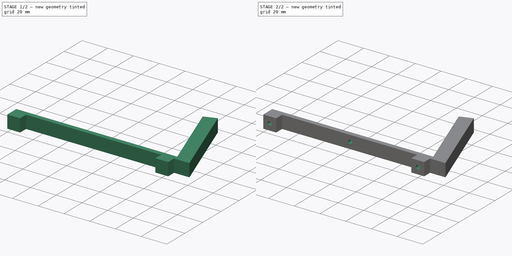
[diagram: build sequence overview — one tinted view per stage of 2, left to right]
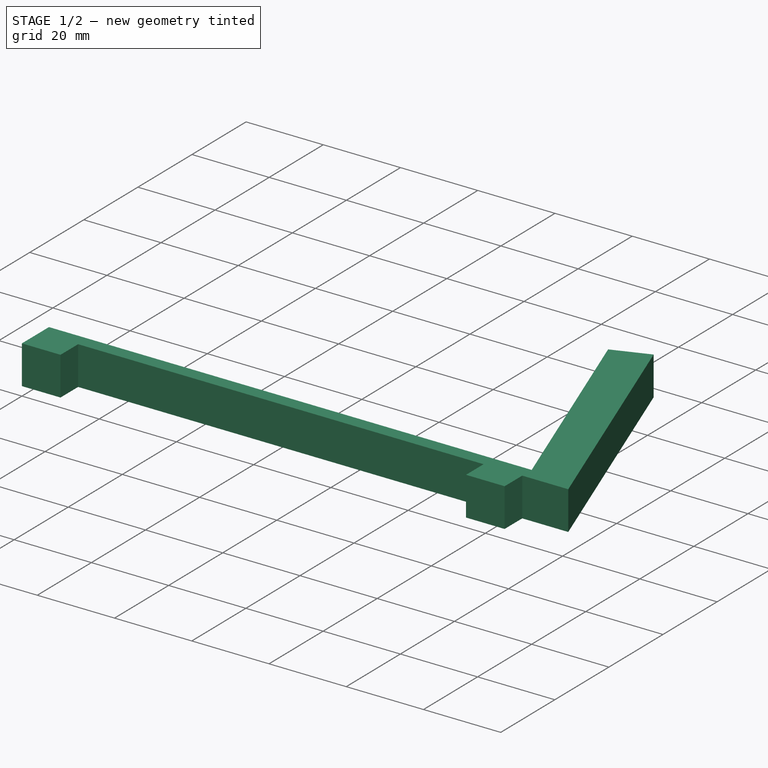
[diagram: stage 1 of 2 — iso view after this stage's code; geometry added in this stage tinted green]
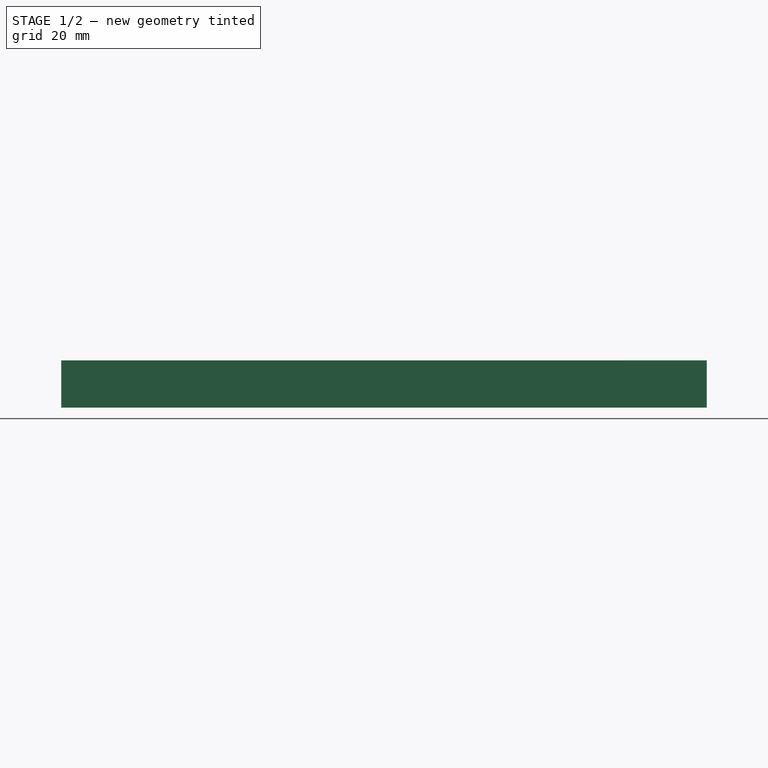
[diagram: stage 1 of 2 — front view after this stage's code; geometry added in this stage tinted green]
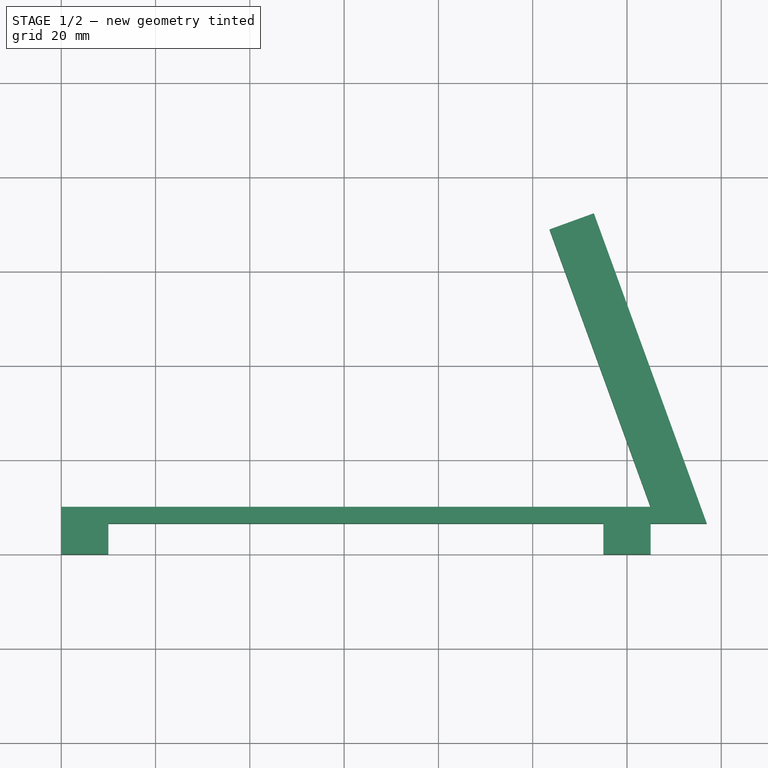
[diagram: stage 1 of 2 — top view after this stage's code; geometry added in this stage tinted green]
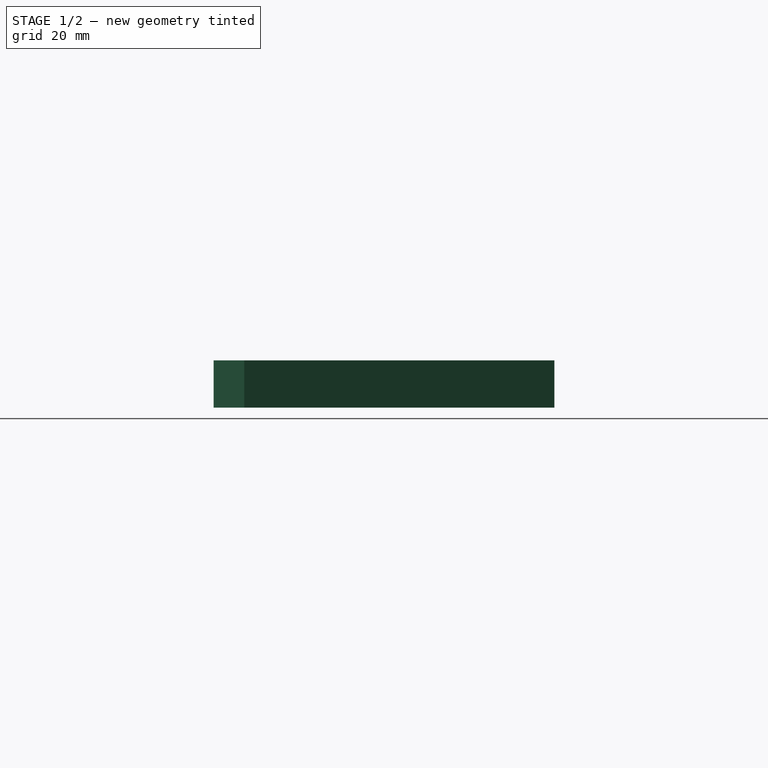
[diagram: stage 1 of 2 — right view after this stage's code; geometry added in this stage tinted green]
FCSTD DOCUMENT  (FreeCAD 0.20R)
Label: 7inch_screen_legs
License: All rights reserved
LicenseURL: http://en.wikipedia.org/wiki/All_rights_reserved
objects: Sketcher::SketchObject×2, PartDesign::Pad×1, PartDesign::Pocket×1, PartDesign::Body×1
note: 7 computed .brp shape members not serialized (recipe doc carries the construction recipe); baked Part::Feature solids carry a one-line shape summary decoded from their .brp

FEATURE [Sketcher::SketchObject] Sketch
  FullyConstrained = true
  MapMode = 5
  Support = -> [XY_Plane]
  sketch-geometry (21):
    g0: LineSegment StartX=0 StartY=0 StartZ=0 EndX=0 EndY=10 EndZ=0
    g1: LineSegment StartX=0 StartY=0 StartZ=0 EndX=10 EndY=0 EndZ=0
    g2: LineSegment StartX=10 StartY=0 StartZ=0 EndX=10 EndY=6.5 EndZ=0
    g3: LineSegment StartX=10 StartY=6.5 StartZ=0 EndX=115 EndY=6.5 EndZ=0
    g4: LineSegment StartX=115 StartY=6.5 StartZ=0 EndX=115 EndY=0 EndZ=0
    g5: LineSegment StartX=115 StartY=-4e-16 StartZ=0 EndX=125 EndY=-4e-16 EndZ=0
    g6: LineSegment StartX=125 StartY=-4e-16 StartZ=0 EndX=125 EndY=6.5 EndZ=0
    g7: LineSegment StartX=125 StartY=6.5 StartZ=0 EndX=136.916 EndY=6.5 EndZ=0
    g8: LineSegment StartX=136.916 StartY=6.5 StartZ=0 EndX=112.974 EndY=72.2785 EndZ=0
    g9: LineSegment StartX=112.974 StartY=72.2785 StartZ=0 EndX=103.577 EndY=68.8583 EndZ=0
    g10: LineSegment StartX=103.577 StartY=68.8583 StartZ=0 EndX=125 EndY=10 EndZ=0
    g11: LineSegment StartX=125 StartY=10 StartZ=0 EndX=0 EndY=10 EndZ=0
    g12: LineSegment StartX=125 StartY=10 StartZ=0 EndX=125 EndY=6.5 EndZ=0
    g13: LineSegment StartX=0 StartY=10 StartZ=0 EndX=110.378 EndY=50.1742 EndZ=0
    g14: LineSegment StartX=10 StartY=6.5 StartZ=0 EndX=5 EndY=3.25 EndZ=0
    g15: LineSegment StartX=5 StartY=3.25 StartZ=0 EndX=0 EndY=0 EndZ=0
    g16: LineSegment StartX=5 StartY=3.25 StartZ=0 EndX=10 EndY=0 EndZ=0
    g17: LineSegment StartX=115 StartY=6.5 StartZ=0 EndX=120 EndY=3.25 EndZ=0
    g18: LineSegment StartX=120 StartY=3.25 StartZ=0 EndX=125 EndY=-4e-16 EndZ=0
    g19: LineSegment StartX=120 StartY=3.25 StartZ=0 EndX=115 EndY=-4e-16 EndZ=0
    g20: LineSegment StartX=5 StartY=3.25 StartZ=0 EndX=120 EndY=3.25 EndZ=0
  constraints (56):
    c: Coincident(g0,g-1)
    c: PointOnObject(g0,g-2)
    c: Coincident(g0,g1)
    c: PointOnObject(g1,g-1)
    c: Coincident(g1,g2)
    c: Vertical(g2)
    c: Coincident(g2,g3)
    c: Horizontal(g3)
    c: Coincident(g3,g4)
    c: PointOnObject(g4,g-1)
    c: Vertical(g4)
    c: Coincident(g4,g5)
    c: Horizontal(g5)
    c: Coincident(g5,g6)
    c: Vertical(g6)
    c: Coincident(g6,g7)
    c: Coincident(g7,g8)
    c: Coincident(g8,g9)
    c: Coincident(g9,g10)
    c: Coincident(g10,g11)
    c: Coincident(g11,g0)
    c: Horizontal(g11)
    c: Parallel(g8,g10)
    c: Perpendicular(g10,g9)
    c: Distance(g9) = 10
    c: Horizontal(g7)
    c: Equal(g6,g4)
    c: Equal(g1,g5)
    c: Coincident(g12,g10)
    c: Coincident(g12,g6)
    c: Vertical(g12)
    c: Distance(g5) = 10
    c: Distance(g0) = 10
    c: Angle(g10,g11) = 1.22173
    c: Coincident(g13,g0)
    c: PointOnObject(g13,g10)
    c: Perpendicular(g10,g13)
    c: Distance(g2) = 6.5
    c: Coincident(g2,g14)
    c: Coincident(g14,g15)
    c: Coincident(g15,g0)
    c: Coincident(g14,g16)
    c: Coincident(g16,g1)
    c: Equal(g16,g14)
    c: Equal(g14,g15)
    c: Coincident(g3,g17)
    c: Coincident(g17,g18)
    c: Coincident(g18,g5)
    c: Coincident(g17,g19)
    c: Coincident(g19,g4)
    c: Equal(g17,g19)
    c: Equal(g19,g18)
    c: Coincident(g20,g14)
    c: Coincident(g20,g17)
    c: Distance(g20) = 115
    c: Distance(g8) = 70
FEATURE [PartDesign::Pad] Pad
  Direction = (0,0,1)
  Length = 10
  Length2 = 10
  Profile = -> Sketch
  ReferenceAxis = -> Sketch [N_Axis]
  Type = 0
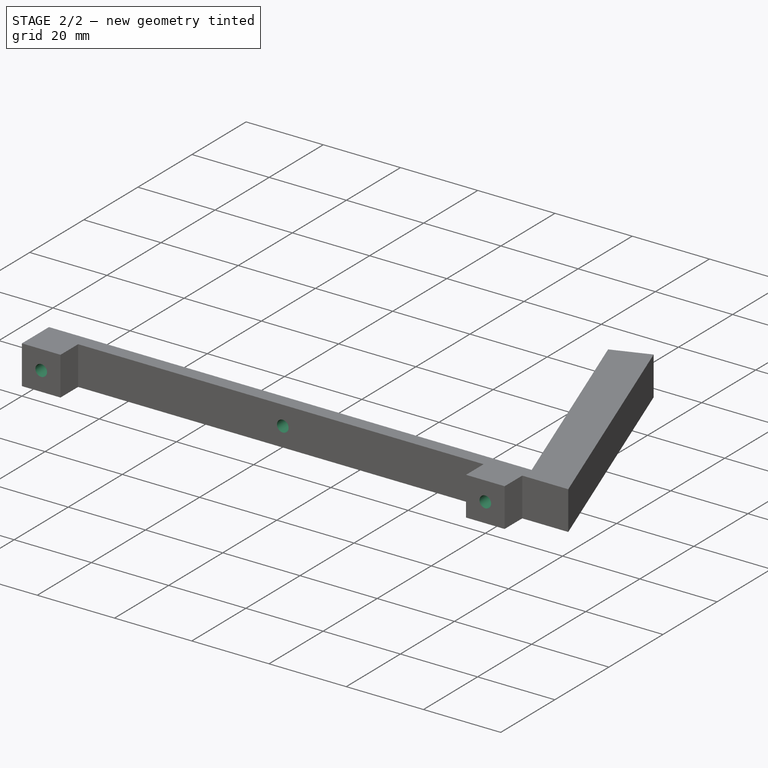
[diagram: stage 2 of 2 — iso view after this stage's code; geometry added in this stage tinted green]
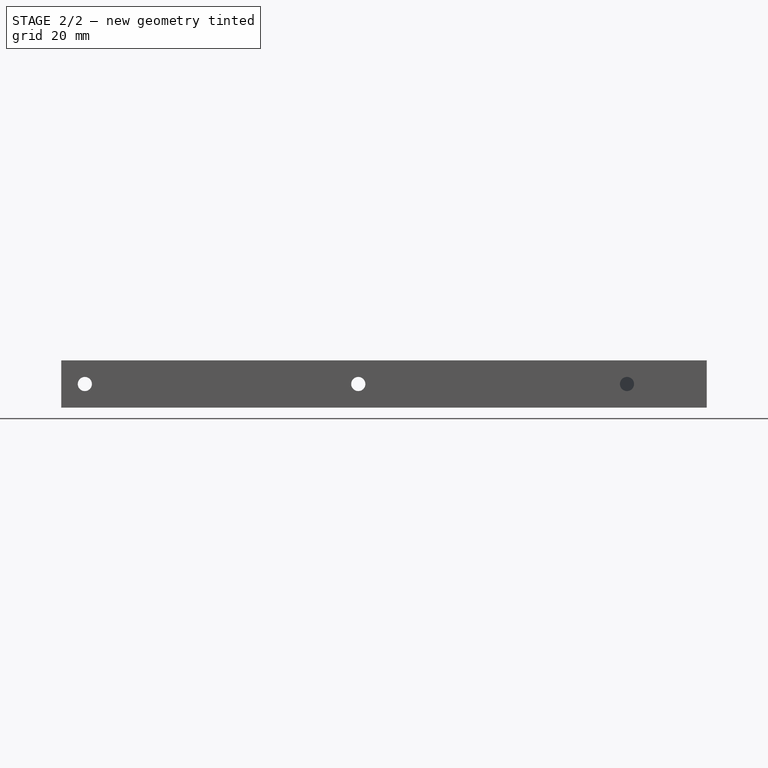
[diagram: stage 2 of 2 — front view after this stage's code; geometry added in this stage tinted green]
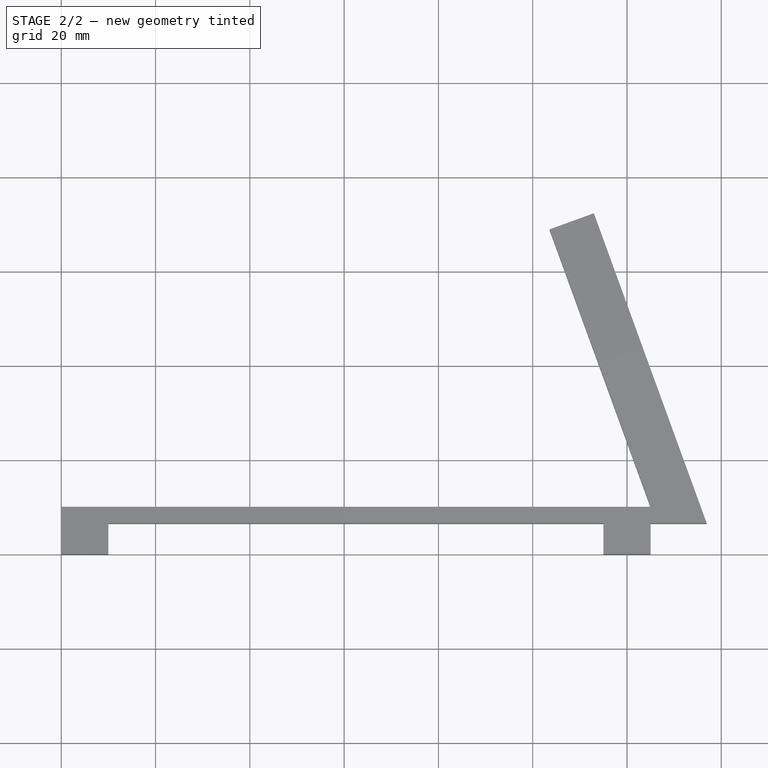
[diagram: stage 2 of 2 — top view after this stage's code; geometry added in this stage tinted green]
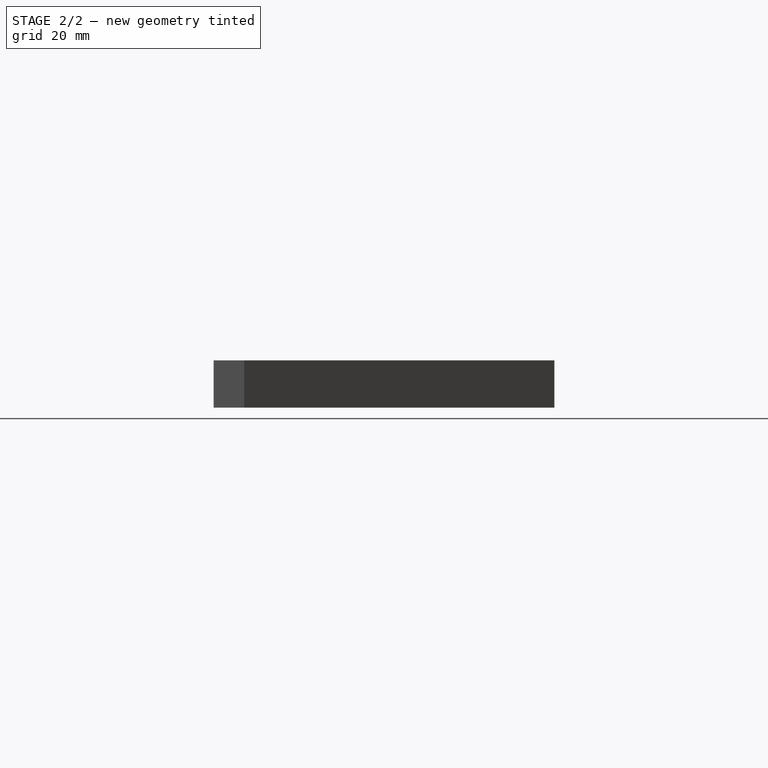
[diagram: stage 2 of 2 — right view after this stage's code; geometry added in this stage tinted green]
FEATURE [Sketcher::SketchObject] Sketch001
  ExternalGeometry = -> [Pad]
  FullyConstrained = true
  MapMode = 5
  Placement = pos=(0,10,0) rot=(0,0.707107,0.707107;3.14159rad)
  Support = -> [Pad]
  sketch-geometry (10):
    g0: LineSegment StartX=-125 StartY=10 StartZ=0 EndX=-120 EndY=5 EndZ=0
    g1: LineSegment StartX=-120 StartY=5 StartZ=0 EndX=-115 EndY=10 EndZ=0
    g2: LineSegment StartX=-120 StartY=5 StartZ=0 EndX=-115 EndY=-2.7e-15 EndZ=0
    g3: LineSegment StartX=-10 StartY=10 StartZ=0 EndX=-5 EndY=5 EndZ=0
    g4: LineSegment StartX=-5 StartY=5 StartZ=0 EndX=0 EndY=10 EndZ=0
    g5: LineSegment StartX=-5 StartY=5 StartZ=0 EndX=0 EndY=-2.7e-15 EndZ=0
    g6: Circle CenterX=-5 CenterY=5 CenterZ=0 NormalX=0 NormalY=0 NormalZ=1 AngleXU=0 Radius=1.5
    g7: Circle CenterX=-120 CenterY=5 CenterZ=0 NormalX=0 NormalY=0 NormalZ=1 AngleXU=0 Radius=1.5
    g8: LineSegment StartX=-5 StartY=5 StartZ=0 EndX=-63 EndY=5 EndZ=0
    g9: Circle CenterX=-63 CenterY=5 CenterZ=0 NormalX=0 NormalY=0 NormalZ=1 AngleXU=0 Radius=1.5
  constraints (23):
    c: Coincident(g0,g-10)
    c: Coincident(g1,g0)
    c: Coincident(g1,g-10)
    c: Coincident(g2,g0)
    c: Coincident(g2,g-9)
    c: Equal(g2,g0)
    c: Equal(g0,g1)
    c: Coincident(g3,g-8)
    c: Coincident(g4,g3)
    c: Coincident(g4,g-8)
    c: Coincident(g5,g3)
    c: Coincident(g5,g-7)
    c: Equal(g5,g4)
    c: Equal(g4,g3)
    c: Coincident(g6,g3)
    c: Coincident(g7,g0)
    c: Diameter(g7) = 3
    c: Diameter(g6) = 3
    c: Coincident(g8,g6)
    c: Horizontal(g8)
    c: Coincident(g9,g8)
    c: Diameter(g9) = 3
    c: Distance(g8) = 58
FEATURE [PartDesign::Pocket] Pocket
  BaseFeature = -> Pad
  Direction = (0,-1,2e-16)
  Length = 5
  Length2 = 5
  Profile = -> Sketch001
  ReferenceAxis = -> Sketch001 [N_Axis]
  Type = 1
FEATURE [PartDesign::Body] Body
  Group = -> [Sketch,Pad,Sketch001,Pocket]
  Origin = -> Origin
  Tip = -> Pocket
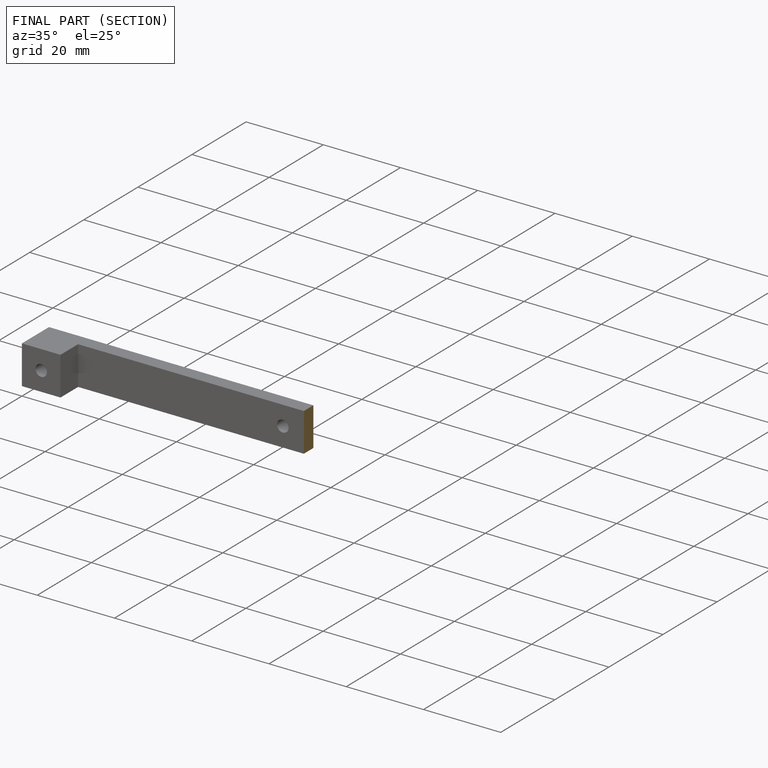
[diagram: finished part — half-section view (interior)]
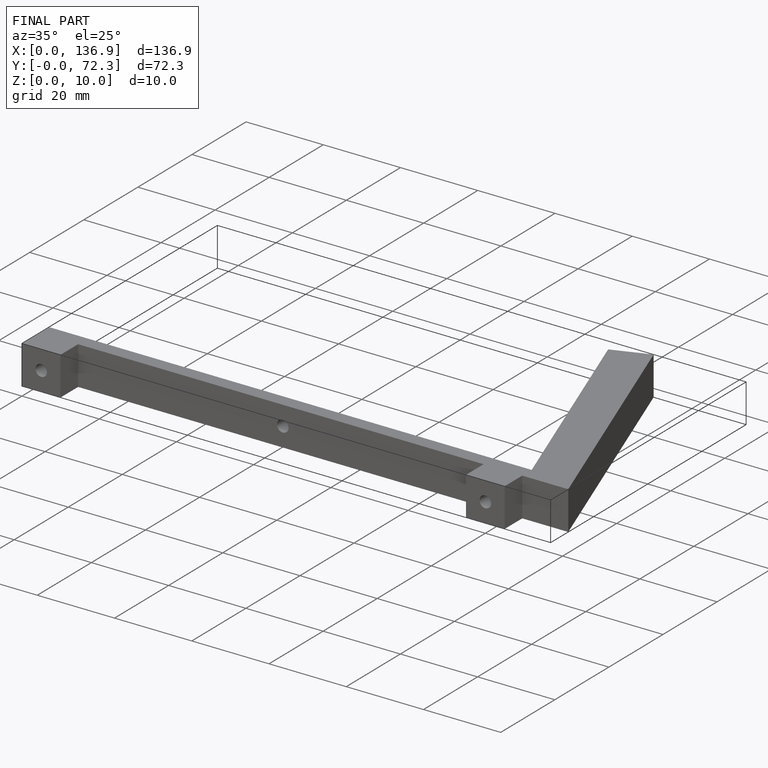
[diagram: finished part — iso view with bounding-box wireframe]
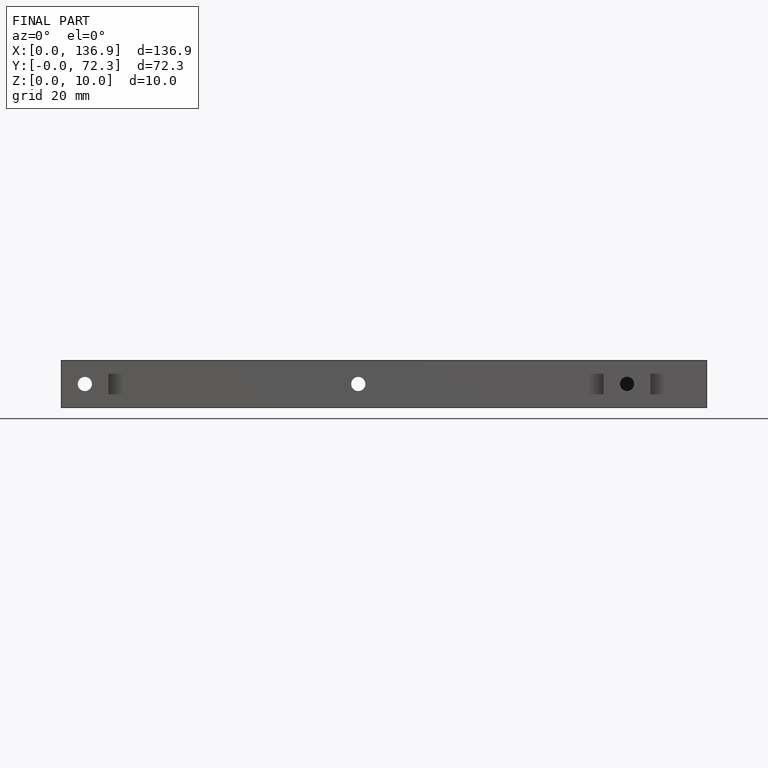
[diagram: finished part — front view with bounding-box wireframe]
